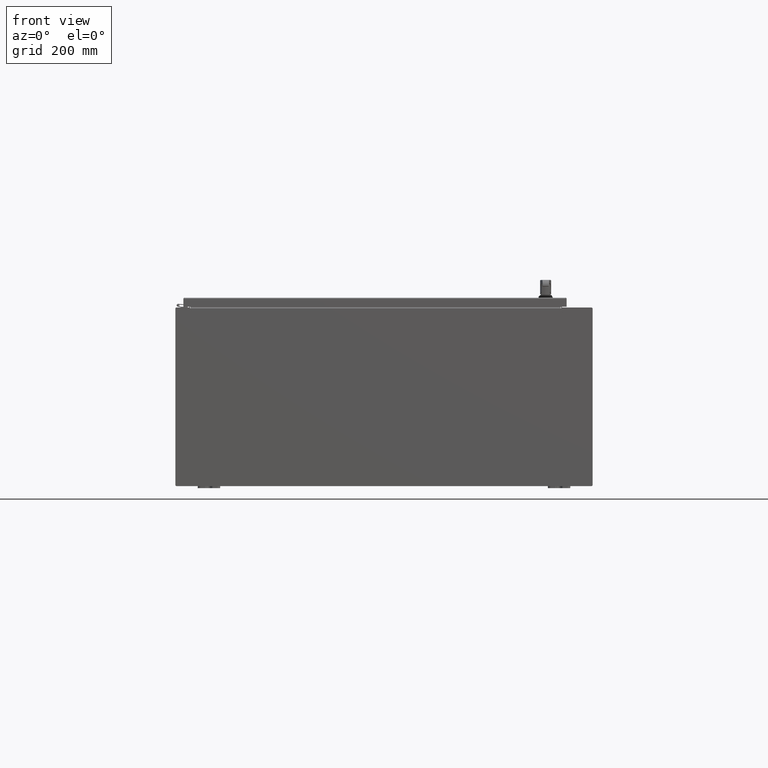
[diagram: clean part render]
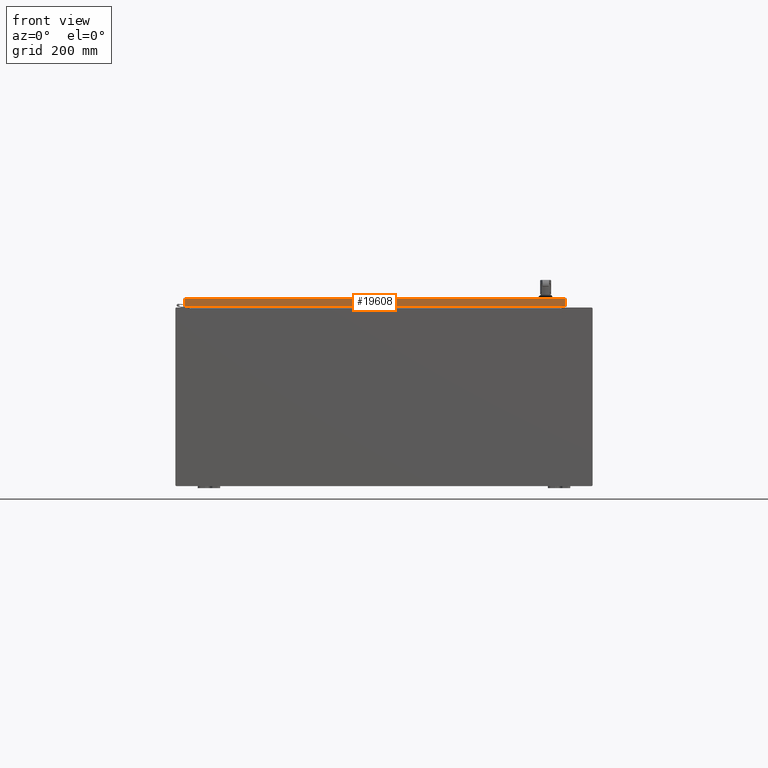
[diagram: same view with one face highlighted and labeled with its STEP entity id]
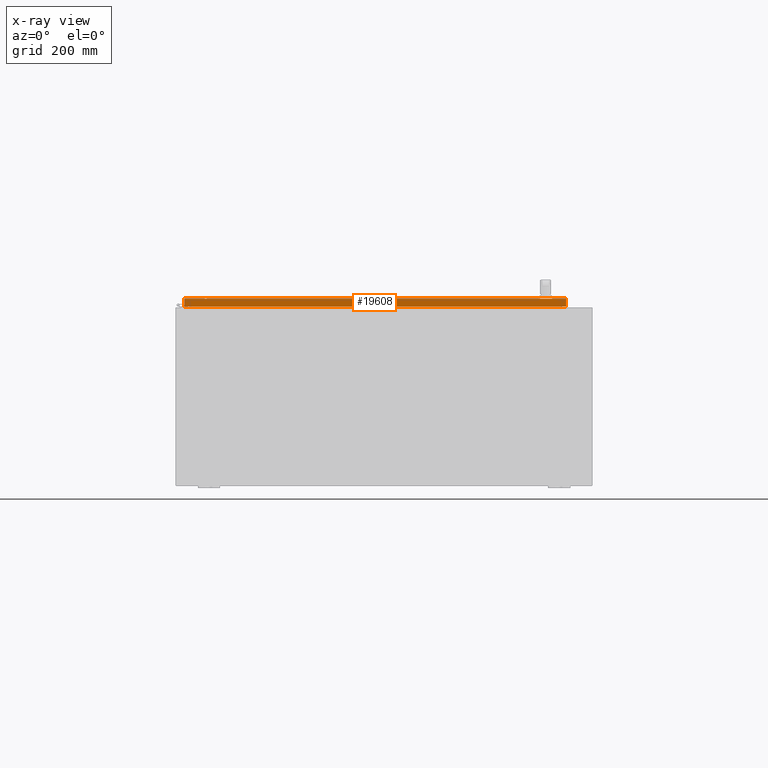
[diagram: x-ray of the same camera — body ghosted, the highlighted face saturated]
A machine part, front view. The second image highlights one B-rep face of the part: STEP entity #19608.
The next image is the same camera in x-ray: the body ghosted, the highlighted face saturated — about 0% of this face is hidden behind the body in this view.
In plain terms, the highlighted planar face has unit normal (0, -1, -0).
Its self-contained STEP definition (entity closure, byte-faithful):
#19369=CARTESIAN_POINT('',(34.269042893218817,-2.185478E-017,-0.031249999999999));
#19370=VERTEX_POINT('',#19369);
#19371=CARTESIAN_POINT('',(0.074707106781187,-2.185478E-017,-0.031249999999999));
#19372=VERTEX_POINT('',#19371);
#19373=CARTESIAN_POINT('',(34.269042893218817,-2.265114E-017,-0.03125));
#19374=DIRECTION('',(-1.0,0.0,0.0));
#19375=VECTOR('',#19374,34.194335786437634);
#19376=LINE('',#19373,#19375);
#19377=EDGE_CURVE('',#19370,#19372,#19376,.T.);
#19453=CARTESIAN_POINT('',(0.074707106781187,8.741914E-017,-0.738499999999999));
#19454=VERTEX_POINT('',#19453);
#19455=CARTESIAN_POINT('',(0.074707106781187,9.187969E-017,-0.738499999999999));
#19456=DIRECTION('',(0.0,0.0,1.0));
#19457=VECTOR('',#19456,0.70725);
#19458=LINE('',#19455,#19457);
#19459=EDGE_CURVE('',#19454,#19372,#19458,.T.);
#19561=CARTESIAN_POINT('',(34.269042893218817,8.741914E-017,-0.738499999999999));
#19562=VERTEX_POINT('',#19561);
#19563=CARTESIAN_POINT('',(34.269042893218817,-2.185478E-017,-0.031249999999999));
#19564=DIRECTION('',(0.0,0.0,-1.0));
#19565=VECTOR('',#19564,0.70725);
#19566=LINE('',#19563,#19565);
#19567=EDGE_CURVE('',#19370,#19562,#19566,.T.);
#19585=CARTESIAN_POINT('',(34.269042893218817,8.741914E-017,-0.738499999999999));
#19586=DIRECTION('',(-1.0,0.0,0.0));
#19587=VECTOR('',#19586,34.194335786437634);
#19588=LINE('',#19585,#19587);
#19589=EDGE_CURVE('',#19562,#19454,#19588,.T.);
#19597=CARTESIAN_POINT('',(17.171875000000004,2.185478E-017,-0.335065307738013));
#19598=DIRECTION('',(0.0,-1.0,0.0));
#19599=DIRECTION('',(1.0,0.0,0.0));
#19600=AXIS2_PLACEMENT_3D('',#19597,#19598,#19599);
#19601=PLANE('',#19600);
#19602=ORIENTED_EDGE('',*,*,#19377,.T.);
#19603=ORIENTED_EDGE('',*,*,#19459,.F.);
#19604=ORIENTED_EDGE('',*,*,#19589,.F.);
#19605=ORIENTED_EDGE('',*,*,#19567,.F.);
#19606=EDGE_LOOP('',(#19602,#19603,#19604,#19605));
#19607=FACE_OUTER_BOUND('',#19606,.T.);
#19608=ADVANCED_FACE('',(#19607),#19601,.T.);